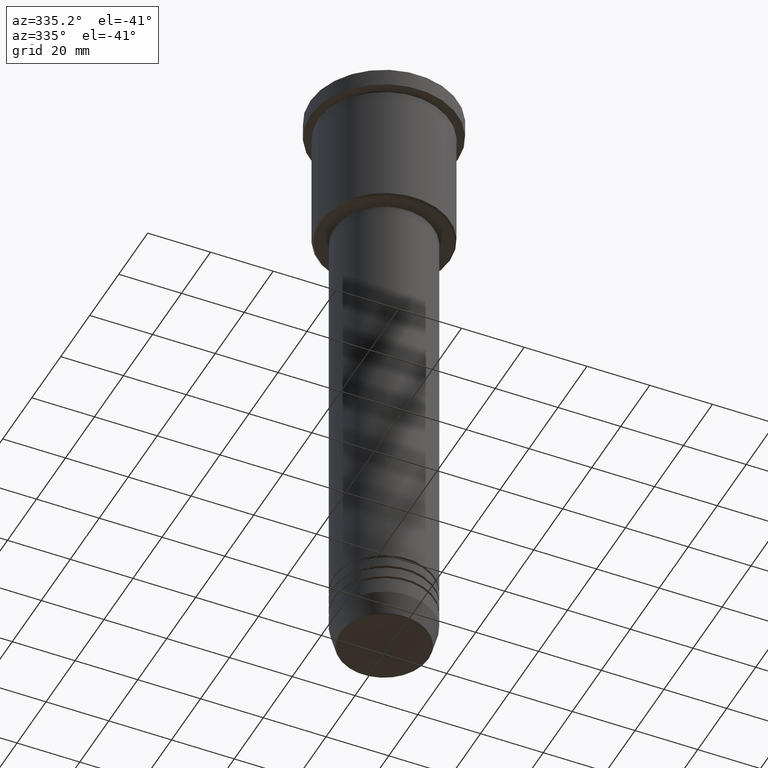
[diagram: clean part render]
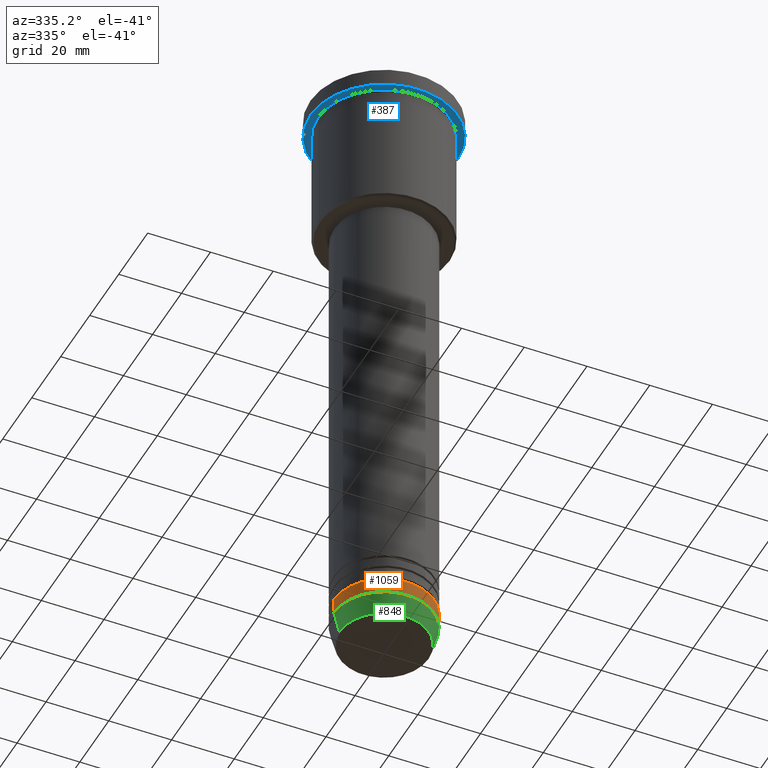
[diagram: same view with three faces highlighted in distinct colors, each labeled with its STEP entity id]
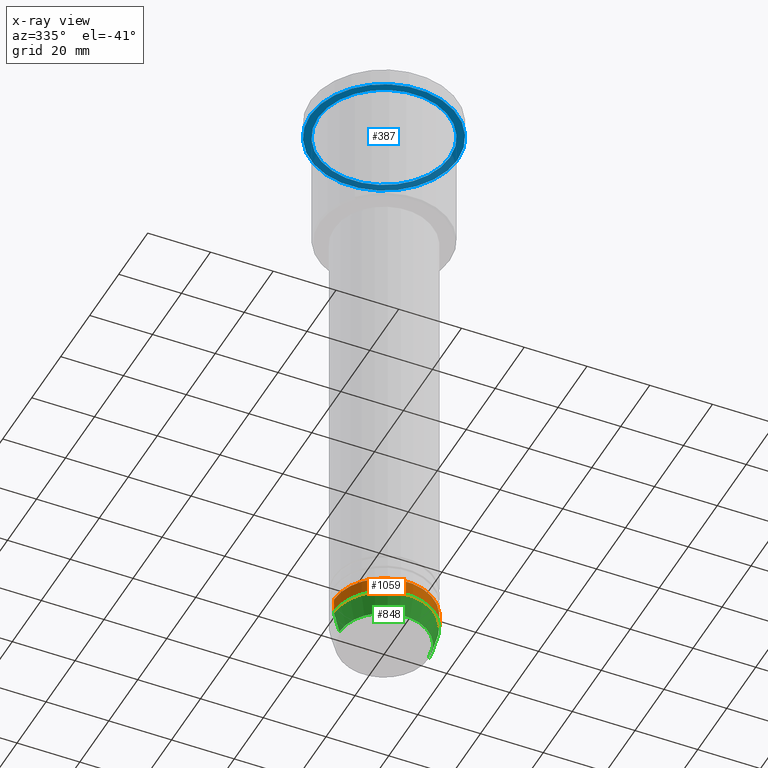
[diagram: x-ray of the same camera — body ghosted, the three highlighted faces saturated]
A machine part, auxiliary view with three faces highlighted in distinct colors.
The next image is the same camera in x-ray (body ghosted, the three faces saturated) — at least one of them is partly hidden behind the body in this view.
Their STEP definitions:

[orange] entity #1059 — the highlighted cylindrical surface (partial cylindrical patch) has radius 16 mm, axis along (-0, -0, 1).
#9 = CARTESIAN_POINT ( 'NONE',  ( 16.00000000000000000, 0.000000000000000000, 0.000000000000000000 ) ) ;
#16 = AXIS2_PLACEMENT_3D ( 'NONE', #629, #86, #715 ) ;
#39 = DIRECTION ( 'NONE',  ( -0.000000000000000000, -0.000000000000000000, 1.000000000000000000 ) ) ;
#50 = DIRECTION ( 'NONE',  ( -0.000000000000000000, -0.000000000000000000, 1.000000000000000000 ) ) ;
#63 = LINE ( 'NONE', #1142, #600 ) ;
#86 = DIRECTION ( 'NONE',  ( -0.000000000000000000, -0.000000000000000000, 1.000000000000000000 ) ) ;
#90 = CYLINDRICAL_SURFACE ( 'NONE', #16, 16.00000000000000000 ) ;
#194 = EDGE_CURVE ( 'NONE', #1144, #497, #743, .T. ) ;
#291 = FACE_OUTER_BOUND ( 'NONE', #630, .T. ) ;
#329 = VERTEX_POINT ( 'NONE', #475 ) ;
#369 = VECTOR ( 'NONE', #940, 1000.000000000000000 ) ;
#375 = LINE ( 'NONE', #9, #369 ) ;
#409 = ORIENTED_EDGE ( 'NONE', *, *, #759, .T. ) ;
#424 = DIRECTION ( 'NONE',  ( 1.000000000000000000, 0.000000000000000000, 0.000000000000000000 ) ) ;
#434 = CARTESIAN_POINT ( 'NONE',  ( 0.000000000000000000, 0.000000000000000000, -194.0000000000000000 ) ) ;
#462 = CIRCLE ( 'NONE', #864, 16.00000000000000000 ) ;
#475 = CARTESIAN_POINT ( 'NONE',  ( 16.00000000000000000, 0.000000000000000000, -194.0000000000000000 ) ) ;
#497 = VERTEX_POINT ( 'NONE', #1090 ) ;
#600 = VECTOR ( 'NONE', #50, 1000.000000000000000 ) ;
#629 = CARTESIAN_POINT ( 'NONE',  ( 0.000000000000000000, 0.000000000000000000, 0.000000000000000000 ) ) ;
#630 = EDGE_LOOP ( 'NONE', ( #962, #409, #1147, #693 ) ) ;
#675 = CARTESIAN_POINT ( 'NONE',  ( -16.00000000000000000, 1.959434878635765131E-15, -189.0000000000000284 ) ) ;
#693 = ORIENTED_EDGE ( 'NONE', *, *, #194, .F. ) ;
#715 = DIRECTION ( 'NONE',  ( 1.000000000000000000, 0.000000000000000000, 0.000000000000000000 ) ) ;
#743 = CIRCLE ( 'NONE', #861, 16.00000000000000000 ) ;
#759 = EDGE_CURVE ( 'NONE', #829, #329, #462, .T. ) ;
#828 = EDGE_CURVE ( 'NONE', #829, #1144, #63, .T. ) ;
#829 = VERTEX_POINT ( 'NONE', #968 ) ;
#830 = DIRECTION ( 'NONE',  ( -0.000000000000000000, -0.000000000000000000, 1.000000000000000000 ) ) ;
#861 = AXIS2_PLACEMENT_3D ( 'NONE', #1021, #830, #1102 ) ;
#864 = AXIS2_PLACEMENT_3D ( 'NONE', #434, #39, #424 ) ;
#940 = DIRECTION ( 'NONE',  ( -0.000000000000000000, -0.000000000000000000, 1.000000000000000000 ) ) ;
#962 = ORIENTED_EDGE ( 'NONE', *, *, #828, .F. ) ;
#968 = CARTESIAN_POINT ( 'NONE',  ( -16.00000000000000000, 1.959434878635765131E-15, -194.0000000000000000 ) ) ;
#1021 = CARTESIAN_POINT ( 'NONE',  ( 0.000000000000000000, 0.000000000000000000, -189.0000000000000284 ) ) ;
#1059 = ADVANCED_FACE ( 'NONE', ( #291 ), #90, .T. ) ;
#1090 = CARTESIAN_POINT ( 'NONE',  ( 16.00000000000000000, 0.000000000000000000, -189.0000000000000284 ) ) ;
#1102 = DIRECTION ( 'NONE',  ( 1.000000000000000000, 0.000000000000000000, 0.000000000000000000 ) ) ;
#1142 = CARTESIAN_POINT ( 'NONE',  ( -16.00000000000000000, 1.959434878635765131E-15, 0.000000000000000000 ) ) ;
#1144 = VERTEX_POINT ( 'NONE', #675 ) ;
#1147 = ORIENTED_EDGE ( 'NONE', *, *, #1167, .T. ) ;
#1167 = EDGE_CURVE ( 'NONE', #329, #497, #375, .T. ) ;

[blue] entity #387 — the highlighted planar face has unit normal (0, 0, -1).
#11 = DIRECTION ( 'NONE',  ( -0.000000000000000000, -0.000000000000000000, 1.000000000000000000 ) ) ;
#59 = ORIENTED_EDGE ( 'NONE', *, *, #671, .F. ) ;
#70 = DIRECTION ( 'NONE',  ( -1.000000000000000000, 0.000000000000000000, -0.000000000000000000 ) ) ;
#79 = AXIS2_PLACEMENT_3D ( 'NONE', #669, #609, #70 ) ;
#114 = CARTESIAN_POINT ( 'NONE',  ( 0.000000000000000000, 0.000000000000000000, -5.999999999999993783 ) ) ;
#135 = CARTESIAN_POINT ( 'NONE',  ( 0.000000000000000000, 0.000000000000000000, -5.999999999999993783 ) ) ;
#179 = AXIS2_PLACEMENT_3D ( 'NONE', #909, #1088, #514 ) ;
#325 = VERTEX_POINT ( 'NONE', #780 ) ;
#330 = EDGE_CURVE ( 'NONE', #970, #1040, #741, .T. ) ;
#372 = EDGE_CURVE ( 'NONE', #1040, #970, #1157, .T. ) ;
#379 = AXIS2_PLACEMENT_3D ( 'NONE', #135, #1129, #858 ) ;
#387 = ADVANCED_FACE ( 'NONE', ( #419, #577 ), #435, .T. ) ;
#390 = ORIENTED_EDGE ( 'NONE', *, *, #1018, .F. ) ;
#419 = FACE_BOUND ( 'NONE', #739, .T. ) ;
#435 = PLANE ( 'NONE',  #79 ) ;
#440 = EDGE_LOOP ( 'NONE', ( #59, #390 ) ) ;
#460 = AXIS2_PLACEMENT_3D ( 'NONE', #114, #11, #926 ) ;
#501 = ORIENTED_EDGE ( 'NONE', *, *, #330, .T. ) ;
#514 = DIRECTION ( 'NONE',  ( 1.000000000000000000, 0.000000000000000000, 0.000000000000000000 ) ) ;
#577 = FACE_OUTER_BOUND ( 'NONE', #440, .T. ) ;
#608 = CARTESIAN_POINT ( 'NONE',  ( -23.50000000000000000, 2.877919977996280320E-15, -5.999999999999993783 ) ) ;
#609 = DIRECTION ( 'NONE',  ( 0.000000000000000000, 0.000000000000000000, -1.000000000000000000 ) ) ;
#658 = CIRCLE ( 'NONE', #179, 23.50000000000000000 ) ;
#669 = CARTESIAN_POINT ( 'NONE',  ( 0.000000000000000000, 23.50000000000000000, -5.999999999999993783 ) ) ;
#671 = EDGE_CURVE ( 'NONE', #325, #783, #1176, .T. ) ;
#714 = CARTESIAN_POINT ( 'NONE',  ( -21.00000000000000000, 0.000000000000000000, -5.999999999999992895 ) ) ;
#739 = EDGE_LOOP ( 'NONE', ( #501, #771 ) ) ;
#741 = CIRCLE ( 'NONE', #975, 21.00000000000000000 ) ;
#749 = DIRECTION ( 'NONE',  ( -1.000000000000000000, 0.000000000000000000, 0.000000000000000000 ) ) ;
#771 = ORIENTED_EDGE ( 'NONE', *, *, #372, .T. ) ;
#780 = CARTESIAN_POINT ( 'NONE',  ( 23.50000000000000000, 0.000000000000000000, -5.999999999999993783 ) ) ;
#783 = VERTEX_POINT ( 'NONE', #608 ) ;
#858 = DIRECTION ( 'NONE',  ( -1.000000000000000000, 0.000000000000000000, 0.000000000000000000 ) ) ;
#909 = CARTESIAN_POINT ( 'NONE',  ( 0.000000000000000000, 0.000000000000000000, -5.999999999999993783 ) ) ;
#926 = DIRECTION ( 'NONE',  ( 1.000000000000000000, 0.000000000000000000, 0.000000000000000000 ) ) ;
#935 = DIRECTION ( 'NONE',  ( -0.000000000000000000, -0.000000000000000000, 1.000000000000000000 ) ) ;
#970 = VERTEX_POINT ( 'NONE', #714 ) ;
#975 = AXIS2_PLACEMENT_3D ( 'NONE', #1115, #935, #749 ) ;
#1018 = EDGE_CURVE ( 'NONE', #783, #325, #658, .T. ) ;
#1040 = VERTEX_POINT ( 'NONE', #1078 ) ;
#1078 = CARTESIAN_POINT ( 'NONE',  ( 21.00000000000000000, 2.571758278209441661E-15, -5.999999999999992895 ) ) ;
#1088 = DIRECTION ( 'NONE',  ( -0.000000000000000000, -0.000000000000000000, 1.000000000000000000 ) ) ;
#1115 = CARTESIAN_POINT ( 'NONE',  ( 0.000000000000000000, 0.000000000000000000, -5.999999999999993783 ) ) ;
#1129 = DIRECTION ( 'NONE',  ( -0.000000000000000000, -0.000000000000000000, 1.000000000000000000 ) ) ;
#1157 = CIRCLE ( 'NONE', #379, 21.00000000000000000 ) ;
#1176 = CIRCLE ( 'NONE', #460, 23.50000000000000000 ) ;

[green] entity #848 — the highlighted conical surface has half-angle 15 deg.
#35 = ORIENTED_EDGE ( 'NONE', *, *, #1076, .T. ) ;
#39 = DIRECTION ( 'NONE',  ( -0.000000000000000000, -0.000000000000000000, 1.000000000000000000 ) ) ;
#57 = AXIS2_PLACEMENT_3D ( 'NONE', #231, #863, #955 ) ;
#65 = CARTESIAN_POINT ( 'NONE',  ( -14.22365507213718239, 1.850665122131322942E-15, -200.6294095225512706 ) ) ;
#231 = CARTESIAN_POINT ( 'NONE',  ( 0.000000000000000000, 0.000000000000000000, -194.0000000000000000 ) ) ;
#252 = ORIENTED_EDGE ( 'NONE', *, *, #759, .F. ) ;
#256 = VERTEX_POINT ( 'NONE', #301 ) ;
#301 = CARTESIAN_POINT ( 'NONE',  ( 14.22365507213718239, 0.000000000000000000, -200.6294095225512706 ) ) ;
#314 = DIRECTION ( 'NONE',  ( 1.000000000000000000, 0.000000000000000000, 0.000000000000000000 ) ) ;
#321 = ORIENTED_EDGE ( 'NONE', *, *, #913, .F. ) ;
#329 = VERTEX_POINT ( 'NONE', #475 ) ;
#424 = DIRECTION ( 'NONE',  ( 1.000000000000000000, 0.000000000000000000, 0.000000000000000000 ) ) ;
#434 = CARTESIAN_POINT ( 'NONE',  ( 0.000000000000000000, 0.000000000000000000, -194.0000000000000000 ) ) ;
#438 = LINE ( 'NONE', #797, #619 ) ;
#462 = CIRCLE ( 'NONE', #864, 16.00000000000000000 ) ;
#475 = CARTESIAN_POINT ( 'NONE',  ( 16.00000000000000000, 0.000000000000000000, -194.0000000000000000 ) ) ;
#517 = EDGE_LOOP ( 'NONE', ( #321, #822, #35, #252 ) ) ;
#527 = DIRECTION ( 'NONE',  ( -0.2588190451025213501, 3.169619151431772337E-17, 0.9659258262890680902 ) ) ;
#618 = CIRCLE ( 'NONE', #765, 14.22365507213718239 ) ;
#619 = VECTOR ( 'NONE', #527, 1000.000000000000000 ) ;
#622 = VERTEX_POINT ( 'NONE', #65 ) ;
#650 = LINE ( 'NONE', #1172, #803 ) ;
#746 = EDGE_CURVE ( 'NONE', #622, #256, #618, .T. ) ;
#759 = EDGE_CURVE ( 'NONE', #829, #329, #462, .T. ) ;
#765 = AXIS2_PLACEMENT_3D ( 'NONE', #942, #850, #314 ) ;
#797 = CARTESIAN_POINT ( 'NONE',  ( -16.00000000000000000, 1.959434878635765131E-15, -194.0000000000000000 ) ) ;
#803 = VECTOR ( 'NONE', #820, 1000.000000000000000 ) ;
#820 = DIRECTION ( 'NONE',  ( 0.2588190451025213501, 0.000000000000000000, 0.9659258262890680902 ) ) ;
#822 = ORIENTED_EDGE ( 'NONE', *, *, #746, .T. ) ;
#829 = VERTEX_POINT ( 'NONE', #968 ) ;
#848 = ADVANCED_FACE ( 'NONE', ( #1039 ), #1085, .T. ) ;
#850 = DIRECTION ( 'NONE',  ( -0.000000000000000000, -0.000000000000000000, 1.000000000000000000 ) ) ;
#863 = DIRECTION ( 'NONE',  ( -0.000000000000000000, -0.000000000000000000, 1.000000000000000000 ) ) ;
#864 = AXIS2_PLACEMENT_3D ( 'NONE', #434, #39, #424 ) ;
#913 = EDGE_CURVE ( 'NONE', #622, #829, #438, .T. ) ;
#942 = CARTESIAN_POINT ( 'NONE',  ( 0.000000000000000000, 0.000000000000000000, -200.6294095225512706 ) ) ;
#955 = DIRECTION ( 'NONE',  ( 1.000000000000000000, 0.000000000000000000, 0.000000000000000000 ) ) ;
#968 = CARTESIAN_POINT ( 'NONE',  ( -16.00000000000000000, 1.959434878635765131E-15, -194.0000000000000000 ) ) ;
#1039 = FACE_OUTER_BOUND ( 'NONE', #517, .T. ) ;
#1076 = EDGE_CURVE ( 'NONE', #256, #329, #650, .T. ) ;
#1085 = CONICAL_SURFACE ( 'NONE', #57, 16.00000000000000000, 0.2617993877991500740 ) ;
#1172 = CARTESIAN_POINT ( 'NONE',  ( 16.00000000000000000, 0.000000000000000000, -194.0000000000000000 ) ) ;